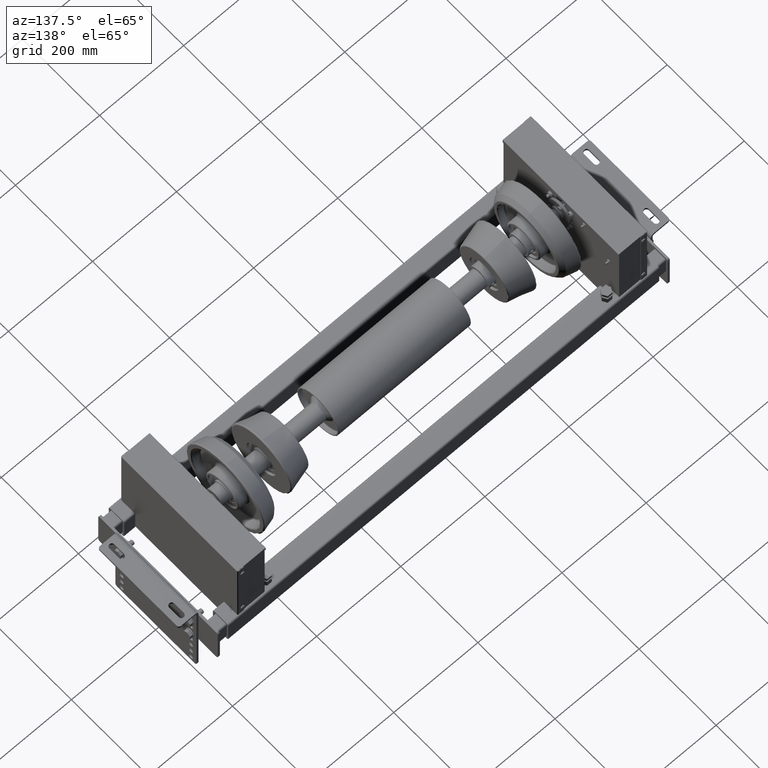
[diagram: clean part render]
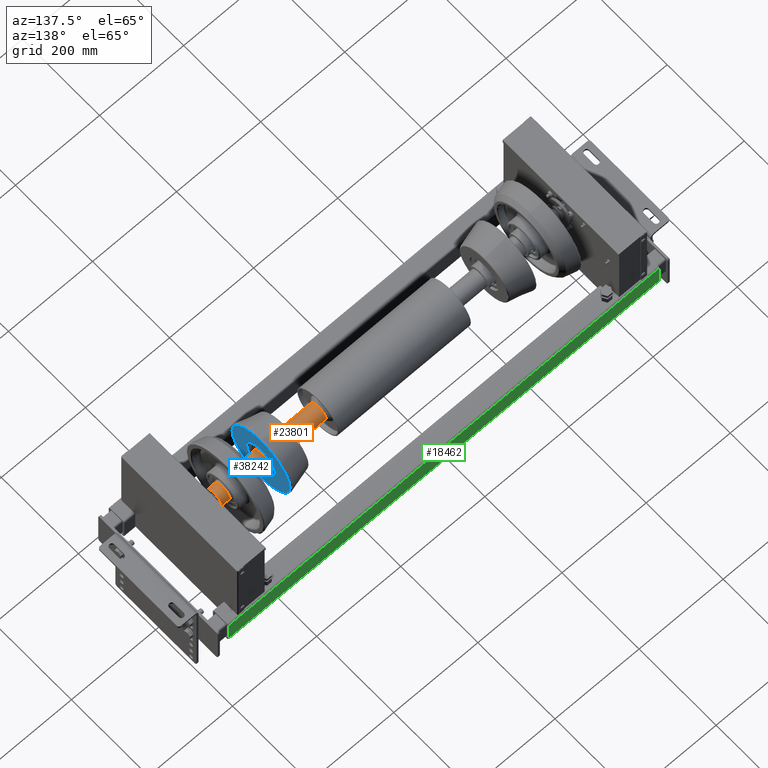
[diagram: same view with three faces highlighted in distinct colors, each labeled with its STEP entity id]
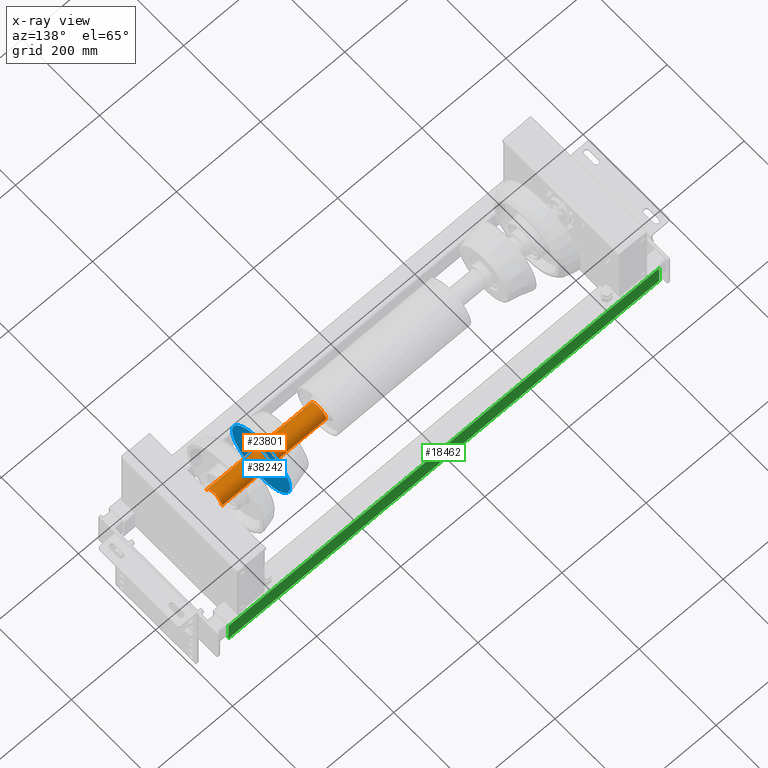
[diagram: x-ray of the same camera — body ghosted, the three highlighted faces saturated]
A machine part, auxiliary view with three faces highlighted in distinct colors.
The next image is the same camera in x-ray (body ghosted, the three faces saturated) — at least one of them is partly hidden behind the body in this view.
Their STEP definitions:

[orange] entity #23801 — the highlighted cylindrical surface (edge-blend (fillet) strip) has radius 20 mm, axis along (-1, 0, 0).
#23735=CARTESIAN_POINT('',(144.514718629999980,20.0,0.0));
#23736=VERTEX_POINT('',#23735);
#23752=CARTESIAN_POINT('',(144.514718630000000,-20.0,-2.449294E-015));
#23753=VERTEX_POINT('',#23752);
#23760=CARTESIAN_POINT('',(144.514718630000000,0.0,0.0));
#23761=DIRECTION('',(1.0,0.0,0.0));
#23762=DIRECTION('',(0.0,1.0,0.0));
#23763=AXIS2_PLACEMENT_3D('',#23760,#23761,#23762);
#23764=CIRCLE('',#23763,20.0);
#23765=EDGE_CURVE('',#23753,#23736,#23764,.T.);
#23770=CARTESIAN_POINT('',(20.507359314999974,0.0,0.0));
#23771=DIRECTION('',(1.0,0.0,0.0));
#23772=DIRECTION('',(0.0,1.0,0.0));
#23773=AXIS2_PLACEMENT_3D('',#23770,#23771,#23772);
#23774=CYLINDRICAL_SURFACE('',#23773,20.0);
#23775=CARTESIAN_POINT('',(-103.500000000000030,20.0,0.0));
#23776=VERTEX_POINT('',#23775);
#23777=CARTESIAN_POINT('',(144.514718629999980,20.0,0.0));
#23778=DIRECTION('',(-1.0,0.0,0.0));
#23779=VECTOR('',#23778,248.014718630000000);
#23780=LINE('',#23777,#23779);
#23781=EDGE_CURVE('',#23736,#23776,#23780,.T.);
#23782=ORIENTED_EDGE('',*,*,#23781,.F.);
#23783=ORIENTED_EDGE('',*,*,#23765,.F.);
#23784=CARTESIAN_POINT('',(-103.500000000000030,-20.0,-2.449294E-015));
#23785=VERTEX_POINT('',#23784);
#23786=CARTESIAN_POINT('',(144.514718630000000,-20.0,-2.449294E-015));
#23787=DIRECTION('',(-1.0,0.0,0.0));
#23788=VECTOR('',#23787,248.014718630000030);
#23789=LINE('',#23786,#23788);
#23790=EDGE_CURVE('',#23753,#23785,#23789,.T.);
#23791=ORIENTED_EDGE('',*,*,#23790,.T.);
#23792=CARTESIAN_POINT('',(-103.500000000000030,0.0,0.0));
#23793=DIRECTION('',(1.0,0.0,0.0));
#23794=DIRECTION('',(0.0,1.0,0.0));
#23795=AXIS2_PLACEMENT_3D('',#23792,#23793,#23794);
#23796=CIRCLE('',#23795,20.0);
#23797=EDGE_CURVE('',#23785,#23776,#23796,.T.);
#23798=ORIENTED_EDGE('',*,*,#23797,.T.);
#23799=EDGE_LOOP('',(#23782,#23783,#23791,#23798));
#23800=FACE_OUTER_BOUND('',#23799,.T.);
#23801=ADVANCED_FACE('',(#23800),#23774,.T.);

[blue] entity #38242 — the highlighted planar face has unit normal (1, -0, 0).
#37985=CARTESIAN_POINT('',(27.500000000000000,37.500000000000000,0.0));
#37986=VERTEX_POINT('',#37985);
#37995=CARTESIAN_POINT('',(27.500000000000000,-37.500000000000000,-4.592425E-015));
#37996=VERTEX_POINT('',#37995);
#37997=CARTESIAN_POINT('',(27.500000000000000,0.0,0.0));
#37998=DIRECTION('',(1.0,0.0,0.0));
#37999=DIRECTION('',(0.0,1.0,0.0));
#38000=AXIS2_PLACEMENT_3D('',#37997,#37998,#37999);
#38001=CIRCLE('',#38000,37.500000000000000);
#38002=EDGE_CURVE('',#37986,#37996,#38001,.T.);
#38130=CARTESIAN_POINT('',(27.500000000000000,0.0,-75.491936567896985));
#38131=VERTEX_POINT('',#38130);
#38139=CARTESIAN_POINT('',(27.500000000000000,-9.245096E-015,75.491936567896985));
#38140=VERTEX_POINT('',#38139);
#38141=CARTESIAN_POINT('',(27.500000000000000,0.0,0.0));
#38142=DIRECTION('',(-1.0,0.0,0.0));
#38143=DIRECTION('',(0.0,-1.0,0.0));
#38144=AXIS2_PLACEMENT_3D('',#38141,#38142,#38143);
#38145=CIRCLE('',#38144,75.491936567896985);
#38146=EDGE_CURVE('',#38131,#38140,#38145,.T.);
#38183=CARTESIAN_POINT('',(27.500000000000000,75.491936567896985,1.054315E-012));
#38184=VERTEX_POINT('',#38183);
#38185=CARTESIAN_POINT('',(27.500000000000000,0.0,0.0));
#38186=DIRECTION('',(-1.0,0.0,0.0));
#38187=DIRECTION('',(0.0,-1.0,0.0));
#38188=AXIS2_PLACEMENT_3D('',#38185,#38186,#38187);
#38189=CIRCLE('',#38188,75.491936567896985);
#38190=EDGE_CURVE('',#38140,#38184,#38189,.T.);
#38192=CARTESIAN_POINT('',(27.500000000000000,0.0,0.0));
#38193=DIRECTION('',(-1.0,0.0,0.0));
#38194=DIRECTION('',(0.0,-1.0,0.0));
#38195=AXIS2_PLACEMENT_3D('',#38192,#38193,#38194);
#38196=CIRCLE('',#38195,75.491936567896985);
#38197=EDGE_CURVE('',#38184,#38131,#38196,.T.);
#38222=CARTESIAN_POINT('',(27.500000000000000,58.125000000000000,0.0));
#38223=DIRECTION('',(1.0,0.0,0.0));
#38224=DIRECTION('',(0.0,0.0,-1.0));
#38225=AXIS2_PLACEMENT_3D('',#38222,#38223,#38224);
#38226=PLANE('',#38225);
#38227=ORIENTED_EDGE('',*,*,#38197,.F.);
#38228=ORIENTED_EDGE('',*,*,#38190,.F.);
#38229=ORIENTED_EDGE('',*,*,#38146,.F.);
#38230=EDGE_LOOP('',(#38227,#38228,#38229));
#38231=FACE_OUTER_BOUND('',#38230,.T.);
#38232=ORIENTED_EDGE('',*,*,#38002,.F.);
#38233=CARTESIAN_POINT('',(27.500000000000000,0.0,0.0));
#38234=DIRECTION('',(1.0,0.0,0.0));
#38235=DIRECTION('',(0.0,1.0,0.0));
#38236=AXIS2_PLACEMENT_3D('',#38233,#38234,#38235);
#38237=CIRCLE('',#38236,37.500000000000000);
#38238=EDGE_CURVE('',#37996,#37986,#38237,.T.);
#38239=ORIENTED_EDGE('',*,*,#38238,.F.);
#38240=EDGE_LOOP('',(#38232,#38239));
#38241=FACE_BOUND('',#38240,.T.);
#38242=ADVANCED_FACE('',(#38231,#38241),#38226,.T.);

[green] entity #18462 — the highlighted planar face has unit normal (-0, 1, -0).
#18404=CARTESIAN_POINT('',(20.0,26.0,620.0));
#18405=VERTEX_POINT('',#18404);
#18413=CARTESIAN_POINT('',(20.0,26.0,-405.0));
#18414=VERTEX_POINT('',#18413);
#18415=CARTESIAN_POINT('',(20.0,26.0,-405.0));
#18416=DIRECTION('',(0.0,0.0,1.0));
#18417=VECTOR('',#18416,1025.0);
#18418=LINE('',#18415,#18417);
#18419=EDGE_CURVE('',#18414,#18405,#18418,.T.);
#18432=CARTESIAN_POINT('',(20.0,26.0,-405.0));
#18433=DIRECTION('',(1.0,0.0,0.0));
#18434=DIRECTION('',(0.0,0.0,-1.0));
#18435=AXIS2_PLACEMENT_3D('',#18432,#18433,#18434);
#18436=PLANE('',#18435);
#18437=CARTESIAN_POINT('',(20.0,-25.999999999999886,620.0));
#18438=VERTEX_POINT('',#18437);
#18439=CARTESIAN_POINT('',(20.0,26.0,620.0));
#18440=DIRECTION('',(0.0,-1.0,0.0));
#18441=VECTOR('',#18440,51.999999999999886);
#18442=LINE('',#18439,#18441);
#18443=EDGE_CURVE('',#18405,#18438,#18442,.T.);
#18444=ORIENTED_EDGE('',*,*,#18443,.T.);
#18445=CARTESIAN_POINT('',(20.0,-25.999999999999886,-405.0));
#18446=VERTEX_POINT('',#18445);
#18447=CARTESIAN_POINT('',(20.0,-25.999999999999886,-405.0));
#18448=DIRECTION('',(0.0,0.0,1.0));
#18449=VECTOR('',#18448,1025.0);
#18450=LINE('',#18447,#18449);
#18451=EDGE_CURVE('',#18446,#18438,#18450,.T.);
#18452=ORIENTED_EDGE('',*,*,#18451,.F.);
#18453=CARTESIAN_POINT('',(20.0,26.0,-405.0));
#18454=DIRECTION('',(0.0,-1.0,0.0));
#18455=VECTOR('',#18454,51.999999999999886);
#18456=LINE('',#18453,#18455);
#18457=EDGE_CURVE('',#18414,#18446,#18456,.T.);
#18458=ORIENTED_EDGE('',*,*,#18457,.F.);
#18459=ORIENTED_EDGE('',*,*,#18419,.T.);
#18460=EDGE_LOOP('',(#18444,#18452,#18458,#18459));
#18461=FACE_OUTER_BOUND('',#18460,.T.);
#18462=ADVANCED_FACE('',(#18461),#18436,.T.);